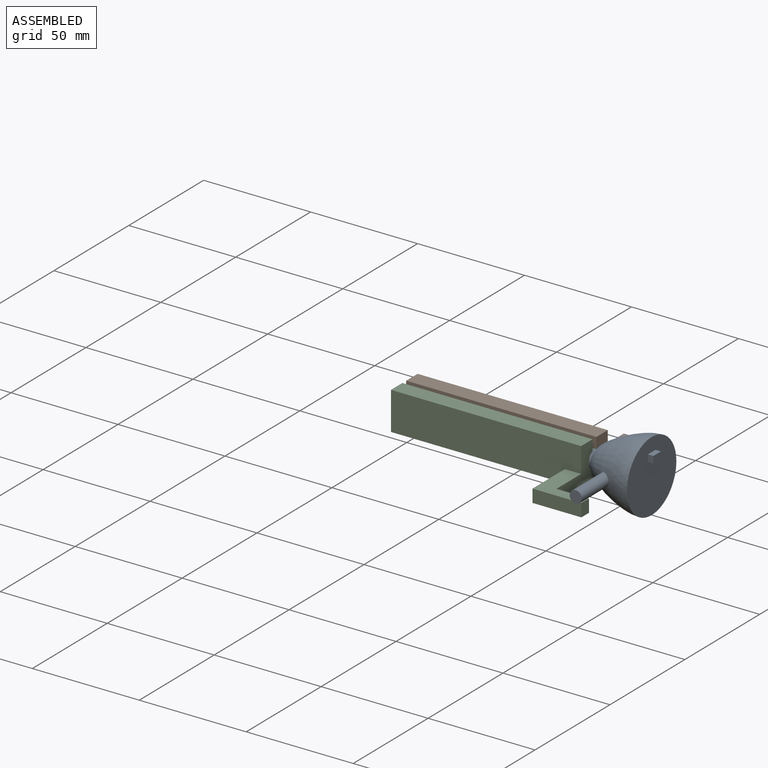
[diagram: assembled view]
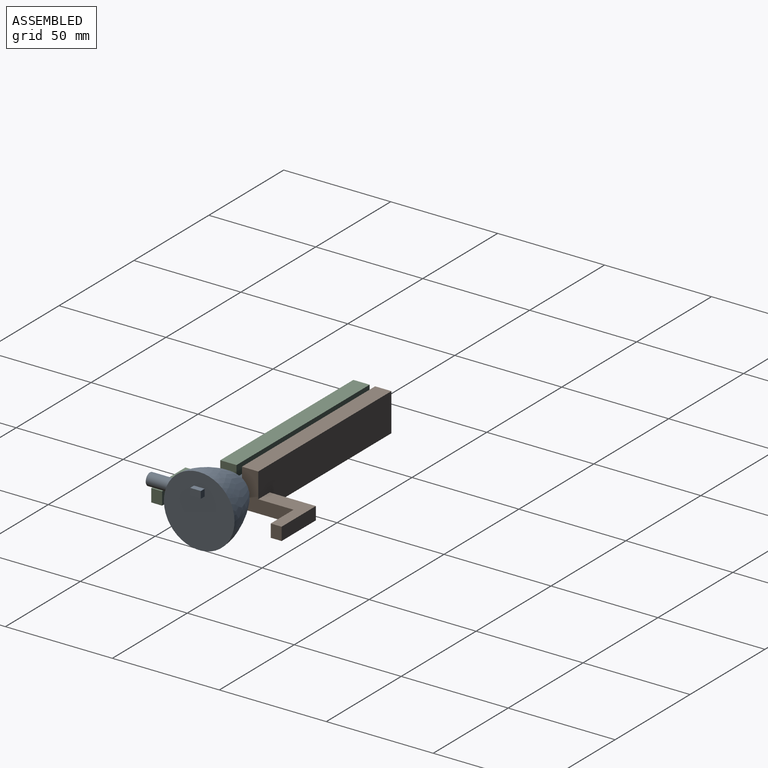
[diagram: assembled view, second angle]
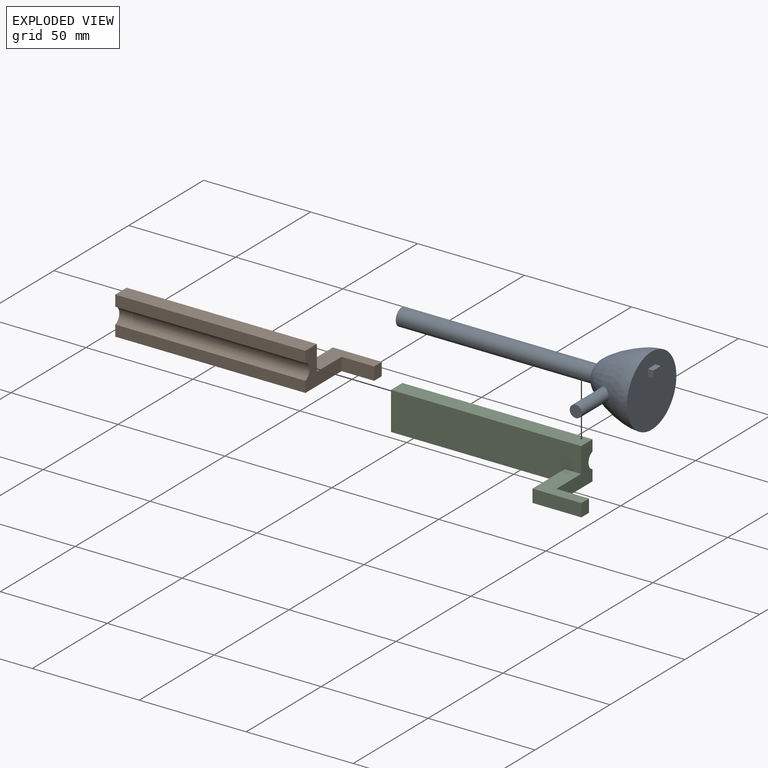
[diagram: exploded view]
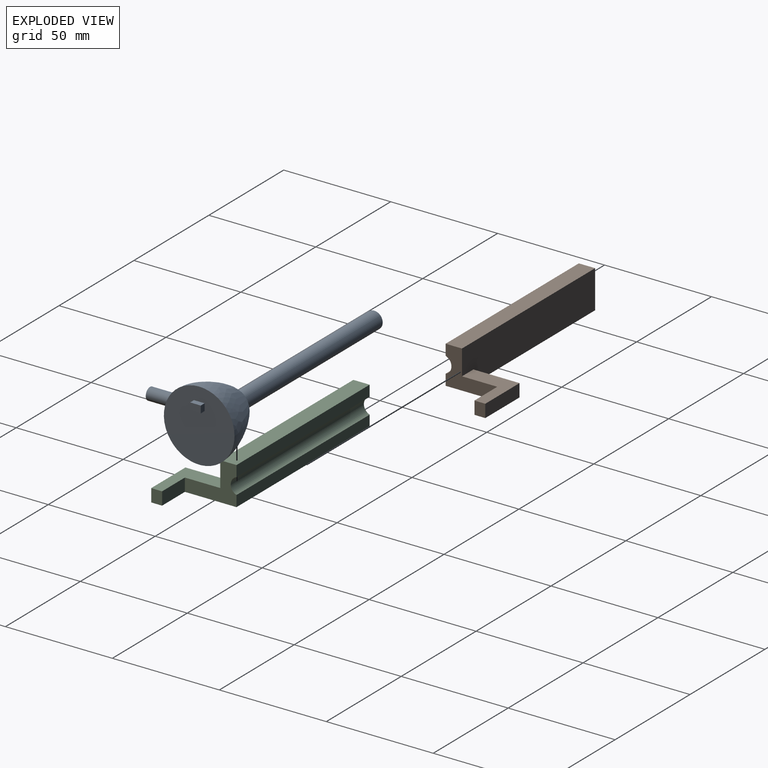
[diagram: exploded view, second angle]
ASSEMBLY  parts=3 mates=4
PART A: 13 faces, bbox 119.4x48.6x33 mm
  f0: plane 33.02x33.02mm, normal (1,0,0), area 839.8mm2, adj f1,f8,f9,f10,f11
  f1: bspline ~33.02x33.02mm, area 2182.3mm2, adj f0,f3,f6
  f2: cylinder r=2.92mm len=91.44mm, axis (-1,0,0), area 1678.2mm2, adj f4,f5
  f3: cylinder r=3.98mm len=91.44mm, axis (-1,0,0), area 2283.8mm2, adj f1,f4
  f4: plane 7.95x7.95mm, normal (-1,0,0), area 22.8mm2, adj f2,f3
  f5: plane 5.84x5.84mm, normal (-1,0,0), area 26.8mm2, adj f2
  f6: cylinder r=2.83mm len=20.26mm, axis (0,1,0), area 341mm2, adj f1,f7
  f7: plane 5.66x5.66mm, normal (0,-1,0), area 25.2mm2, adj f6
  f8: plane 4.99x2.54mm, normal (0,0,-1), area 12.7mm2, adj f0,f9,f11,f12
  f9: plane 3.3x2.54mm, normal (0,1,0), area 8.4mm2, adj f0,f8,f10,f12
  f10: plane 4.99x2.54mm, normal (0,0,1), area 12.7mm2, adj f0,f9,f11,f12
  f11: plane 3.3x2.54mm, normal (0,-1,0), area 8.4mm2, adj f0,f8,f10,f12
  f12: plane 4.99x3.3mm, normal (1,0,0), area 16.4mm2, adj f8,f9,f10,f11
PART B: 13 faces, bbox 104.1x29.2x17.8 mm
  f0: plane 24.13x17.78mm, normal (1,0,0), area 220.4mm2, adj f1,f2,f4,f5,f6,f7,f9,f11
  f1: plane 88.9x5.12mm, normal (0,-1,0), area 455.5mm2, adj f0,f2,f3,f7
  f2: plane 88.9x7.62mm, normal (0,0,1), area 677.4mm2, adj f0,f1,f3,f6
  f3: plane 17.78x7.62mm, normal (-1,0,0), area 120.6mm2, adj f1,f2,f4,f5,f6,f7
  f4: plane 104.14x29.21mm, normal (0,0,-1), area 919.4mm2, adj f0,f3,f5,f6,f8,f10,f11,f12
  f5: plane 88.9x5.12mm, normal (0,-1,0), area 455.5mm2, adj f0,f3,f4,f7
  f6: plane 88.9x17.78mm, normal (0,1,0), area 1534.6mm2, adj f0,f2,f3,f4,f8,f9
  f7: cylinder r=3.98mm len=88.9mm, axis (-1,0,0), area 880.4mm2, adj f0,f1,f3,f5
  f8: plane 21.59x6.05mm, normal (-1,0,0), area 130.5mm2, adj f4,f6,f9,f10
  f9: plane 22.86x21.59mm, normal (0,0,1), area 241.9mm2, adj f0,f6,f8,f10,f11,f12
  f10: plane 22.86x6.05mm, normal (0,1,0), area 138.2mm2, adj f4,f8,f9,f12
  f11: plane 15.24x6.05mm, normal (0,-1,0), area 92.1mm2, adj f0,f4,f9,f12
  f12: plane 6.05x5.08mm, normal (1,0,0), area 30.7mm2, adj f4,f9,f10,f11
PART C: 13 faces, bbox 104.1x29.2x17.8 mm
  f0: plane 24.13x17.78mm, normal (-1,0,0), area 220.4mm2, adj f1,f3,f4,f5,f6,f7,f9,f11
  f1: plane 88.9x5.12mm, normal (0,-1,0), area 455.5mm2, adj f0,f2,f3,f7
  f2: plane 17.78x7.62mm, normal (1,0,0), area 120.6mm2, adj f1,f3,f4,f5,f6,f7
  f3: plane 88.9x7.62mm, normal (0,0,1), area 677.4mm2, adj f0,f1,f2,f6
  f4: plane 104.14x29.21mm, normal (0,0,-1), area 919.4mm2, adj f0,f2,f5,f6,f8,f10,f11,f12
  f5: plane 88.9x5.12mm, normal (0,-1,0), area 455.5mm2, adj f0,f2,f4,f7
  f6: plane 88.9x17.78mm, normal (0,1,0), area 1534.6mm2, adj f0,f2,f3,f4,f8,f9
  f7: cylinder r=3.98mm len=88.9mm, axis (-1,0,0), area 880.4mm2, adj f0,f1,f2,f5
  f8: plane 21.59x6.05mm, normal (1,0,0), area 130.5mm2, adj f4,f6,f9,f10
  f9: plane 22.86x21.59mm, normal (0,0,1), area 241.9mm2, adj f0,f6,f8,f10,f11,f12
  f10: plane 22.86x6.05mm, normal (0,1,0), area 138.2mm2, adj f4,f8,f9,f12
  f11: plane 15.24x6.05mm, normal (0,-1,0), area 92.1mm2, adj f0,f4,f9,f12
  f12: plane 6.05x5.08mm, normal (-1,0,0), area 30.7mm2, adj f4,f9,f10,f11
PLACE A t=(-119.81,3.51,4.74)mm
PLACE B t=(-29.7,12.4,-4.15)mm fixed
PLACE C rot(axis=(0,0,1),180deg) t=(-118.6,-5.38,-4.15)mm
MATE planar C.f2 <-> B.f3  axis (-1,0,0) through (-118.6,-1.57,13.63)mm
MATE cylindrical A.f2 <-> C.f7  axis (-1,0,0) through (-28.37,3.51,4.74)mm
MATE parallel B.f2 <-> A.f10  axis (0,0,1) through (-29.7,4.78,13.63)mm
MATE cylindrical B.f7 <-> A.f2  axis (-1,0,0) through (-29.7,3.51,4.74)mm
